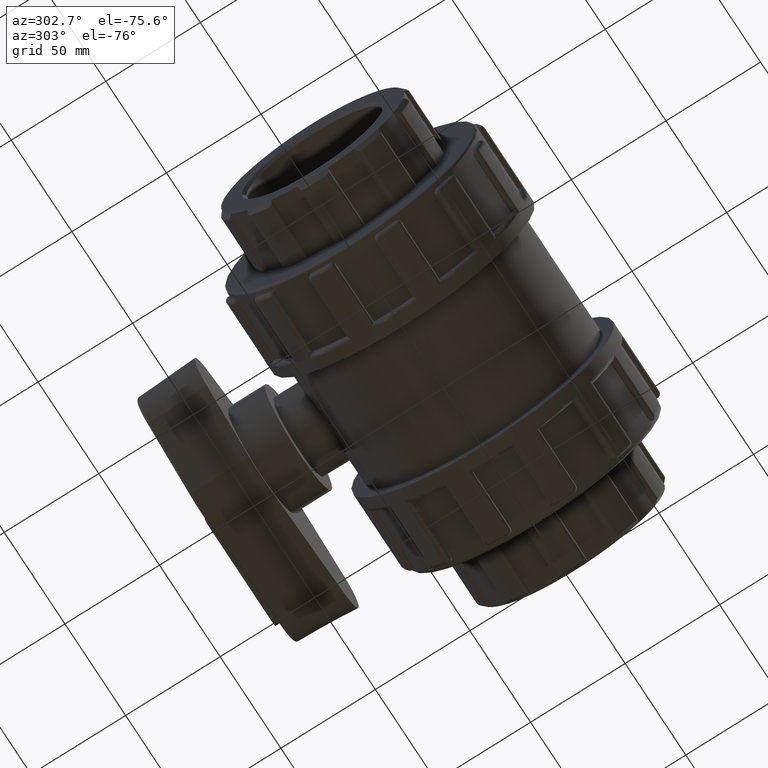
[diagram: clean part render]
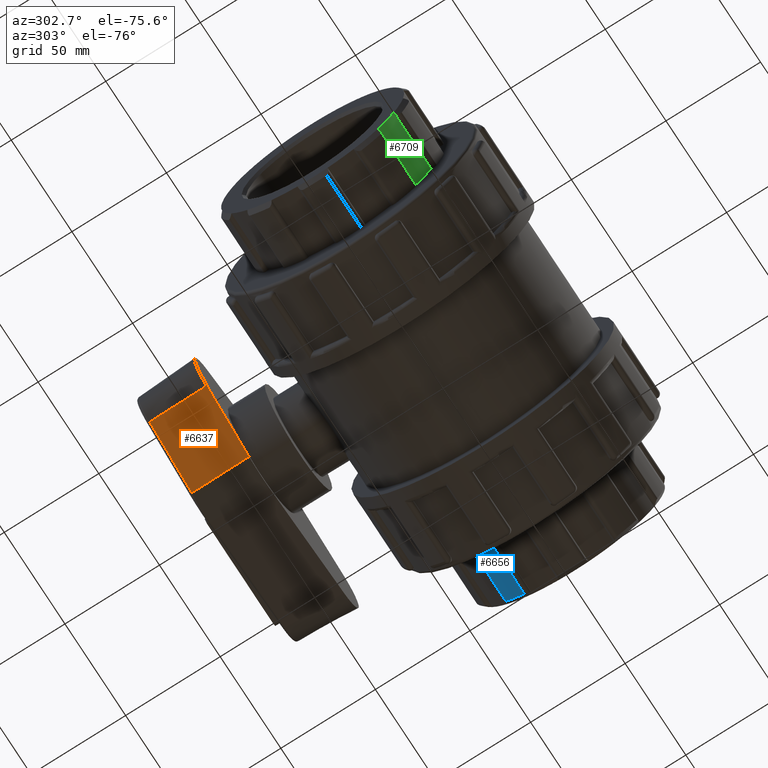
[diagram: same view with three faces highlighted in distinct colors, each labeled with its STEP entity id]
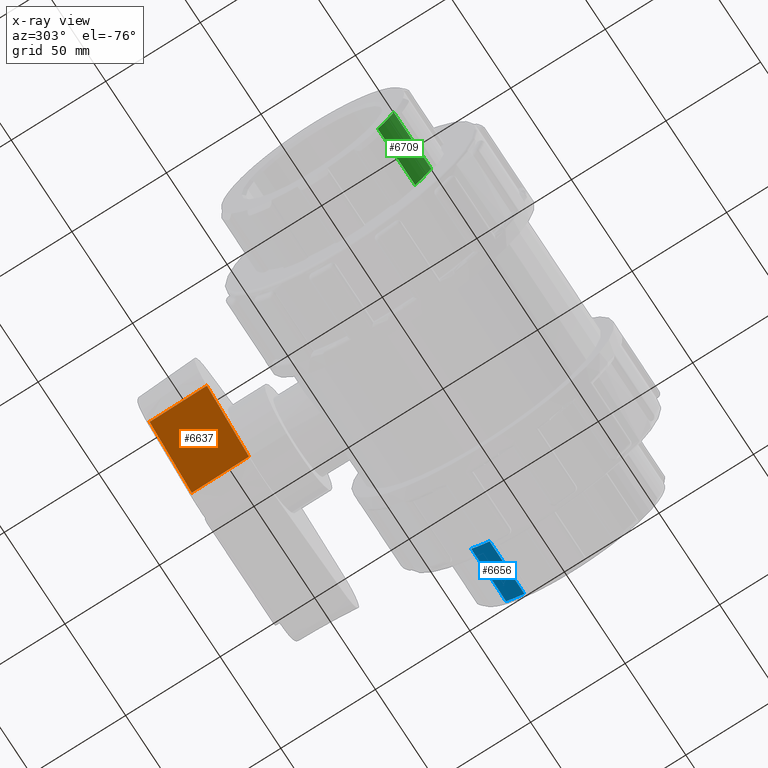
[diagram: x-ray of the same camera — body ghosted, the three highlighted faces saturated]
A machine part, auxiliary view with three faces highlighted in distinct colors.
The next image is the same camera in x-ray (body ghosted, the three faces saturated) — at least one of them is partly hidden behind the body in this view.
Their STEP definitions:

[orange] entity #6637 — the highlighted planar face has unit normal (-0.3505, 0.0523, -0.9351).
#234=PLANE('',#7098);
#440=FACE_OUTER_BOUND('',#876,.T.);
#876=EDGE_LOOP('',(#4414,#4415,#4416,#4417));
#1319=LINE('',#10343,#1715);
#1323=LINE('',#10364,#1719);
#1338=LINE('',#10410,#1734);
#1341=LINE('',#10417,#1737);
#1715=VECTOR('',#8043,37.0803182294867);
#1719=VECTOR('',#8069,30.6731167760225);
#1734=VECTOR('',#8118,37.0803182294867);
#1737=VECTOR('',#8127,30.6731167760225);
#2633=VERTEX_POINT('',#10333);
#2635=VERTEX_POINT('',#10339);
#2642=VERTEX_POINT('',#10362);
#2656=VERTEX_POINT('',#10408);
#3284=EDGE_CURVE('',#2633,#2635,#1319,.T.);
#3295=EDGE_CURVE('',#2633,#2642,#1323,.T.);
#3317=EDGE_CURVE('',#2642,#2656,#1338,.T.);
#3321=EDGE_CURVE('',#2635,#2656,#1341,.T.);
#4414=ORIENTED_EDGE('',*,*,#3284,.F.);
#4415=ORIENTED_EDGE('',*,*,#3295,.T.);
#4416=ORIENTED_EDGE('',*,*,#3317,.T.);
#4417=ORIENTED_EDGE('',*,*,#3321,.F.);
#6637=ADVANCED_FACE('',(#440),#234,.T.);
#7098=AXIS2_PLACEMENT_3D('',#10416,#8125,#8126);
#8043=DIRECTION('',(-0.936371672461784,-2.8233054248756E-16,0.351010101010101));
#8069=DIRECTION('',(-0.0183704492872956,-0.998629534754574,-0.0490059068770921));
#8118=DIRECTION('',(-0.936371672461784,-2.8233054248756E-16,0.351010101010101));
#8125=DIRECTION('center_axis',(-0.350529053865873,0.0523359562429438,-0.935088407627874));
#8126=DIRECTION('ref_axis',(0.936371672461784,0.,-0.351010101010101));
#8127=DIRECTION('',(-0.0183704492872956,-0.998629534754574,-0.0490059068770921));
#10333=CARTESIAN_POINT('',(-9.78326298865895,126.631080335512,-26.0983097080743));
#10339=CARTESIAN_POINT('',(-44.5042225846186,126.631080335512,-13.0827434608555));
#10343=CARTESIAN_POINT('',(-9.78326298865896,126.631080335512,-26.0983097080743));
#10362=CARTESIAN_POINT('',(-10.3467419248762,96.,-27.6014736124302));
#10364=CARTESIAN_POINT('',(-9.75808080808081,128.,-26.0311324944376));
#10408=CARTESIAN_POINT('',(-45.0677015208358,96.,-14.5859073652114));
#10410=CARTESIAN_POINT('',(-10.3467419248762,96.,-27.6014736124302));
#10416=CARTESIAN_POINT('Origin',(-9.75808080808081,128.,-26.0311324944376));
#10417=CARTESIAN_POINT('',(-44.4790404040404,128.,-13.0155662472188));

[blue] entity #6656 — the highlighted cylindrical surface (partial cylindrical patch) has radius 50.5582 mm, axis along (1, 0, 0).
#459=FACE_OUTER_BOUND('',#897,.T.);
#897=EDGE_LOOP('',(#4486,#4487,#4488,#4489));
#1347=LINE('',#10520,#1743);
#1358=LINE('',#10620,#1754);
#1743=VECTOR('',#8171,28.63322);
#1754=VECTOR('',#8220,28.63322);
#2151=CIRCLE('',#7138,50.5582);
#2152=CIRCLE('',#7139,50.5582);
#2674=VERTEX_POINT('',#10506);
#2675=VERTEX_POINT('',#10519);
#2696=VERTEX_POINT('',#10617);
#2697=VERTEX_POINT('',#10619);
#3341=EDGE_CURVE('',#2674,#2675,#1347,.T.);
#3367=EDGE_CURVE('',#2696,#2697,#1358,.T.);
#3370=EDGE_CURVE('',#2697,#2674,#2151,.T.);
#3371=EDGE_CURVE('',#2696,#2675,#2152,.T.);
#4486=ORIENTED_EDGE('',*,*,#3341,.F.);
#4487=ORIENTED_EDGE('',*,*,#3370,.F.);
#4488=ORIENTED_EDGE('',*,*,#3367,.F.);
#4489=ORIENTED_EDGE('',*,*,#3371,.T.);
#6443=CYLINDRICAL_SURFACE('',#7137,50.5582);
#6656=ADVANCED_FACE('',(#459),#6443,.T.);
#7137=AXIS2_PLACEMENT_3D('',#10635,#8222,#8223);
#7138=AXIS2_PLACEMENT_3D('',#10636,#8224,#8225);
#7139=AXIS2_PLACEMENT_3D('',#10637,#8226,#8227);
#8171=DIRECTION('',(-1.,0.,0.));
#8220=DIRECTION('',(1.,0.,0.));
#8222=DIRECTION('center_axis',(1.,0.,0.));
#8223=DIRECTION('ref_axis',(0.,1.,0.));
#8224=DIRECTION('center_axis',(1.,0.,0.));
#8225=DIRECTION('ref_axis',(0.,-1.,0.));
#8226=DIRECTION('center_axis',(1.,0.,0.));
#8227=DIRECTION('ref_axis',(0.,0.,-1.));
#10506=CARTESIAN_POINT('',(105.33322,34.3840906105707,-37.0656970813185));
#10519=CARTESIAN_POINT('',(76.7,34.3840906105707,-37.0656970813185));
#10520=CARTESIAN_POINT('',(107.5,34.3840906105707,-37.0656970813185));
#10617=CARTESIAN_POINT('',(76.7,24.6263044054158,-44.1551437385476));
#10619=CARTESIAN_POINT('',(105.33322,24.6263044054158,-44.1551437385476));
#10620=CARTESIAN_POINT('',(107.5,24.6263044054158,-44.1551437385476));
#10635=CARTESIAN_POINT('Origin',(92.1,0.,0.));
#10636=CARTESIAN_POINT('Origin',(105.33322,0.,0.));
#10637=CARTESIAN_POINT('Origin',(76.7,0.,0.));

[green] entity #6709 — the highlighted cylindrical surface (partial cylindrical patch) has radius 48.3914 mm, axis along (-1, 0, 0).
#512=FACE_OUTER_BOUND('',#950,.T.);
#950=EDGE_LOOP('',(#4698,#4699,#4700,#4701));
#1369=LINE('',#10745,#1765);
#1371=LINE('',#10770,#1767);
#1765=VECTOR('',#8273,30.8);
#1767=VECTOR('',#8289,30.8);
#2223=CIRCLE('',#7263,48.39142);
#2224=CIRCLE('',#7264,48.39142);
#2704=VERTEX_POINT('',#10661);
#2715=VERTEX_POINT('',#10727);
#2718=VERTEX_POINT('',#10732);
#2722=VERTEX_POINT('',#10768);
#3396=EDGE_CURVE('',#2718,#2715,#1369,.T.);
#3403=EDGE_CURVE('',#2704,#2722,#1371,.T.);
#3526=EDGE_CURVE('',#2718,#2704,#2223,.T.);
#3527=EDGE_CURVE('',#2715,#2722,#2224,.T.);
#4698=ORIENTED_EDGE('',*,*,#3526,.T.);
#4699=ORIENTED_EDGE('',*,*,#3403,.T.);
#4700=ORIENTED_EDGE('',*,*,#3527,.F.);
#4701=ORIENTED_EDGE('',*,*,#3396,.F.);
#6489=CYLINDRICAL_SURFACE('',#7262,48.39142);
#6709=ADVANCED_FACE('',(#512),#6489,.T.);
#7262=AXIS2_PLACEMENT_3D('',#11265,#8528,#8529);
#7263=AXIS2_PLACEMENT_3D('',#11266,#8530,#8531);
#7264=AXIS2_PLACEMENT_3D('',#11267,#8532,#8533);
#8273=DIRECTION('',(1.,0.,0.));
#8289=DIRECTION('',(1.,0.,0.));
#8528=DIRECTION('center_axis',(-1.,0.,0.));
#8529=DIRECTION('ref_axis',(0.,0.587785252292473,-0.809016994374948));
#8530=DIRECTION('center_axis',(1.,0.,0.));
#8531=DIRECTION('ref_axis',(0.,-1.,0.));
#8532=DIRECTION('center_axis',(1.,0.,0.));
#8533=DIRECTION('ref_axis',(0.,0.587785252292473,-0.809016994374948));
#10661=CARTESIAN_POINT('',(-107.5,-34.4656273140476,-33.9683685723288));
#10727=CARTESIAN_POINT('',(-76.7,-42.9563028404629,-22.2819562851838));
#10732=CARTESIAN_POINT('',(-107.5,-42.9563028404629,-22.2819562851838));
#10745=CARTESIAN_POINT('',(-107.5,-42.9563028404629,-22.2819562851838));
#10768=CARTESIAN_POINT('',(-76.7,-34.4656273140476,-33.9683685723288));
#10770=CARTESIAN_POINT('',(-107.5,-34.4656273140476,-33.9683685723288));
#11265=CARTESIAN_POINT('Origin',(-107.5,0.,0.));
#11266=CARTESIAN_POINT('Origin',(-107.5,0.,0.));
#11267=CARTESIAN_POINT('Origin',(-76.7,0.,0.));